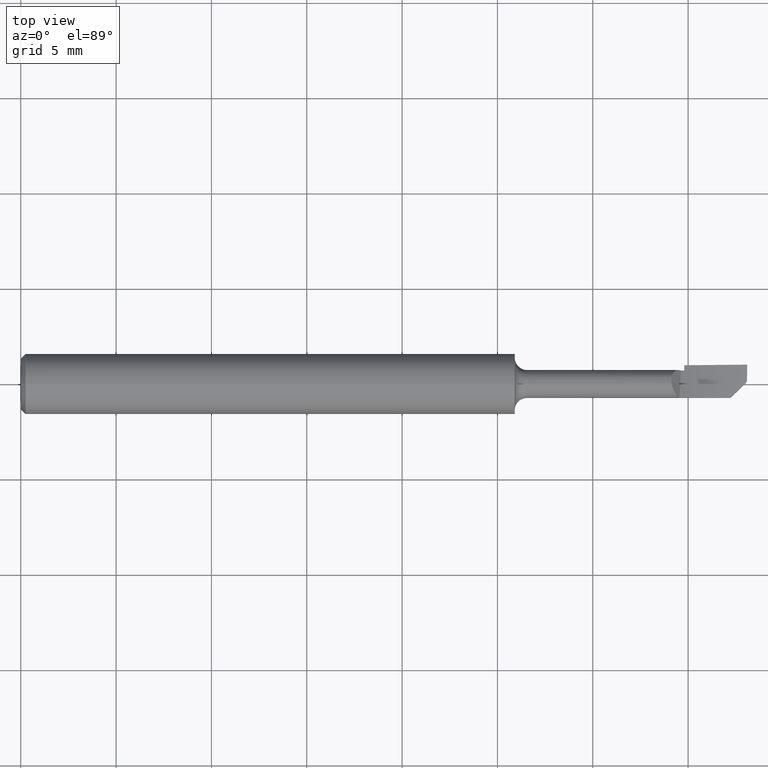
[diagram: clean part render]
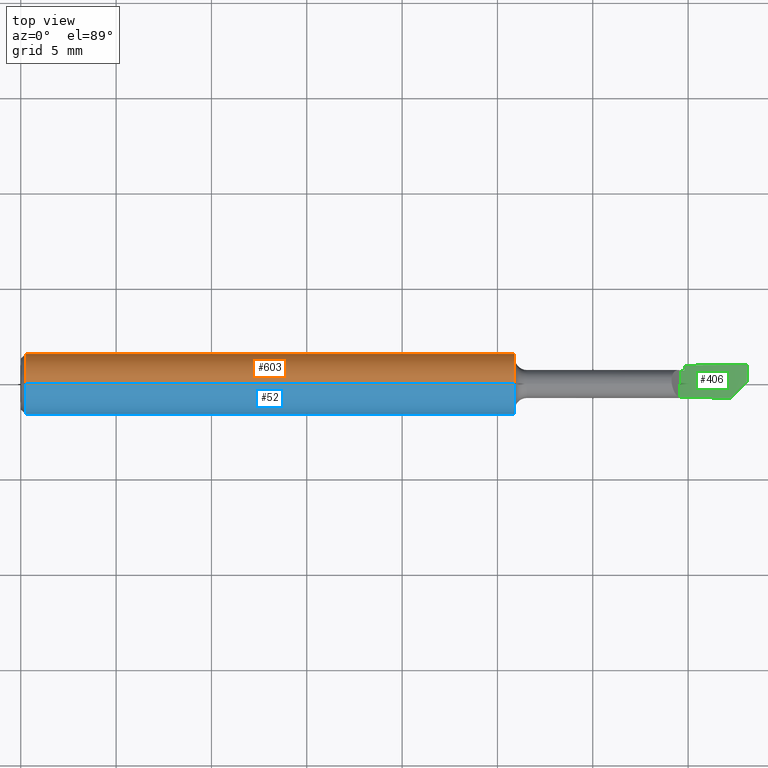
[diagram: same view with three faces highlighted in distinct colors, each labeled with its STEP entity id]
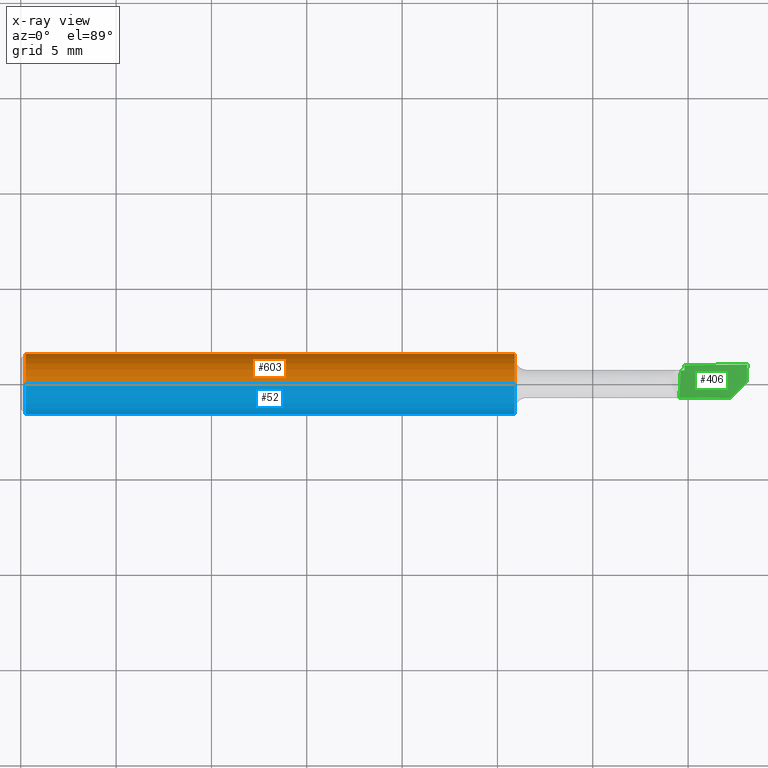
[diagram: x-ray of the same camera — body ghosted, the three highlighted faces saturated]
A machine part, top view with three faces highlighted in distinct colors.
The next image is the same camera in x-ray (body ghosted, the three faces saturated) — at least one of them is partly hidden behind the body in this view.
Their STEP definitions:

[orange] entity #603 — the highlighted cylindrical surface (edge-blend (fillet) strip) has radius 1.5837 mm, axis along (-1, -0, -0).
#8 = DIRECTION ( 'NONE',  ( -1.000000000000000000, -0.000000000000000000, -0.000000000000000000 ) ) ;
#11 = VERTEX_POINT ( 'NONE', #242 ) ;
#25 = CYLINDRICAL_SURFACE ( 'NONE', #326, 0.06234999999999997489 ) ;
#34 = VERTEX_POINT ( 'NONE', #731 ) ;
#89 = DIRECTION ( 'NONE',  ( -1.000000000000000000, -0.000000000000000000, -0.000000000000000000 ) ) ;
#92 = LINE ( 'NONE', #693, #513 ) ;
#93 = VERTEX_POINT ( 'NONE', #533 ) ;
#101 = CIRCLE ( 'NONE', #336, 0.06234999999999997489 ) ;
#127 = EDGE_CURVE ( 'NONE', #445, #93, #682, .T. ) ;
#143 = CARTESIAN_POINT ( 'NONE',  ( 1.020000000000000240, 0.000000000000000000, 0.000000000000000000 ) ) ;
#145 = ORIENTED_EDGE ( 'NONE', *, *, #775, .F. ) ;
#177 = AXIS2_PLACEMENT_3D ( 'NONE', #501, #8, #621 ) ;
#205 = CARTESIAN_POINT ( 'NONE',  ( 0.000000000000000000, 7.635672792683743590E-18, -0.06234999999999997489 ) ) ;
#242 = CARTESIAN_POINT ( 'NONE',  ( 1.020000000000000240, 0.000000000000000000, 0.06234999999999997489 ) ) ;
#257 = DIRECTION ( 'NONE',  ( 0.000000000000000000, 0.000000000000000000, -1.000000000000000000 ) ) ;
#266 = DIRECTION ( 'NONE',  ( -1.000000000000000000, -0.000000000000000000, -0.000000000000000000 ) ) ;
#316 = DIRECTION ( 'NONE',  ( -1.000000000000000000, -0.000000000000000000, -0.000000000000000000 ) ) ;
#321 = FACE_OUTER_BOUND ( 'NONE', #619, .T. ) ;
#326 = AXIS2_PLACEMENT_3D ( 'NONE', #690, #266, #687 ) ;
#336 = AXIS2_PLACEMENT_3D ( 'NONE', #143, #746, #257 ) ;
#389 = ORIENTED_EDGE ( 'NONE', *, *, #691, .T. ) ;
#408 = VECTOR ( 'NONE', #89, 39.37007874015748143 ) ;
#445 = VERTEX_POINT ( 'NONE', #662 ) ;
#501 = CARTESIAN_POINT ( 'NONE',  ( 0.01000000000000000021, 0.000000000000000000, 0.000000000000000000 ) ) ;
#513 = VECTOR ( 'NONE', #316, 39.37007874015748143 ) ;
#514 = LINE ( 'NONE', #205, #408 ) ;
#533 = CARTESIAN_POINT ( 'NONE',  ( 0.01000000000000000021, 7.635672792683748212E-18, -0.06235000000000000264 ) ) ;
#571 = EDGE_CURVE ( 'NONE', #34, #11, #101, .T. ) ;
#603 = ADVANCED_FACE ( 'NONE', ( #321 ), #25, .T. ) ;
#619 = EDGE_LOOP ( 'NONE', ( #776, #389, #709, #145 ) ) ;
#621 = DIRECTION ( 'NONE',  ( 0.000000000000000000, 0.000000000000000000, 1.000000000000000000 ) ) ;
#662 = CARTESIAN_POINT ( 'NONE',  ( 0.01000000000000000021, 0.000000000000000000, 0.06235000000000000264 ) ) ;
#682 = CIRCLE ( 'NONE', #177, 0.06235000000000000264 ) ;
#687 = DIRECTION ( 'NONE',  ( 0.000000000000000000, 0.000000000000000000, 1.000000000000000000 ) ) ;
#690 = CARTESIAN_POINT ( 'NONE',  ( 0.000000000000000000, 0.000000000000000000, 0.000000000000000000 ) ) ;
#691 = EDGE_CURVE ( 'NONE', #34, #93, #514, .T. ) ;
#693 = CARTESIAN_POINT ( 'NONE',  ( 0.000000000000000000, 0.000000000000000000, 0.06234999999999997489 ) ) ;
#709 = ORIENTED_EDGE ( 'NONE', *, *, #127, .F. ) ;
#731 = CARTESIAN_POINT ( 'NONE',  ( 1.020000000000000240, 7.635672792683743590E-18, -0.06234999999999997489 ) ) ;
#746 = DIRECTION ( 'NONE',  ( 1.000000000000000000, 0.000000000000000000, 0.000000000000000000 ) ) ;
#775 = EDGE_CURVE ( 'NONE', #11, #445, #92, .T. ) ;
#776 = ORIENTED_EDGE ( 'NONE', *, *, #571, .F. ) ;

[blue] entity #52 — the highlighted cylindrical surface (edge-blend (fillet) strip) has radius 1.5837 mm, axis along (-1, -0, -0).
#11 = VERTEX_POINT ( 'NONE', #242 ) ;
#34 = VERTEX_POINT ( 'NONE', #731 ) ;
#52 = ADVANCED_FACE ( 'NONE', ( #57 ), #419, .T. ) ;
#57 = FACE_OUTER_BOUND ( 'NONE', #697, .T. ) ;
#60 = AXIS2_PLACEMENT_3D ( 'NONE', #595, #474, #541 ) ;
#89 = DIRECTION ( 'NONE',  ( -1.000000000000000000, -0.000000000000000000, -0.000000000000000000 ) ) ;
#92 = LINE ( 'NONE', #693, #513 ) ;
#93 = VERTEX_POINT ( 'NONE', #533 ) ;
#205 = CARTESIAN_POINT ( 'NONE',  ( 0.000000000000000000, 7.635672792683743590E-18, -0.06234999999999997489 ) ) ;
#242 = CARTESIAN_POINT ( 'NONE',  ( 1.020000000000000240, 0.000000000000000000, 0.06234999999999997489 ) ) ;
#278 = CARTESIAN_POINT ( 'NONE',  ( 1.020000000000000240, 0.000000000000000000, 0.000000000000000000 ) ) ;
#283 = AXIS2_PLACEMENT_3D ( 'NONE', #278, #783, #470 ) ;
#316 = DIRECTION ( 'NONE',  ( -1.000000000000000000, -0.000000000000000000, -0.000000000000000000 ) ) ;
#325 = DIRECTION ( 'NONE',  ( 0.000000000000000000, 0.000000000000000000, 1.000000000000000000 ) ) ;
#343 = ORIENTED_EDGE ( 'NONE', *, *, #775, .T. ) ;
#373 = EDGE_CURVE ( 'NONE', #11, #34, #644, .T. ) ;
#385 = CIRCLE ( 'NONE', #435, 0.06235000000000000264 ) ;
#392 = ORIENTED_EDGE ( 'NONE', *, *, #373, .F. ) ;
#408 = VECTOR ( 'NONE', #89, 39.37007874015748143 ) ;
#419 = CYLINDRICAL_SURFACE ( 'NONE', #60, 0.06234999999999997489 ) ;
#435 = AXIS2_PLACEMENT_3D ( 'NONE', #620, #560, #325 ) ;
#445 = VERTEX_POINT ( 'NONE', #662 ) ;
#470 = DIRECTION ( 'NONE',  ( 0.000000000000000000, 0.000000000000000000, -1.000000000000000000 ) ) ;
#474 = DIRECTION ( 'NONE',  ( -1.000000000000000000, -0.000000000000000000, -0.000000000000000000 ) ) ;
#512 = ORIENTED_EDGE ( 'NONE', *, *, #691, .F. ) ;
#513 = VECTOR ( 'NONE', #316, 39.37007874015748143 ) ;
#514 = LINE ( 'NONE', #205, #408 ) ;
#533 = CARTESIAN_POINT ( 'NONE',  ( 0.01000000000000000021, 7.635672792683748212E-18, -0.06235000000000000264 ) ) ;
#541 = DIRECTION ( 'NONE',  ( 0.000000000000000000, 0.000000000000000000, 1.000000000000000000 ) ) ;
#545 = EDGE_CURVE ( 'NONE', #93, #445, #385, .T. ) ;
#560 = DIRECTION ( 'NONE',  ( -1.000000000000000000, -0.000000000000000000, -0.000000000000000000 ) ) ;
#595 = CARTESIAN_POINT ( 'NONE',  ( 0.000000000000000000, 0.000000000000000000, 0.000000000000000000 ) ) ;
#620 = CARTESIAN_POINT ( 'NONE',  ( 0.01000000000000000021, 0.000000000000000000, 0.000000000000000000 ) ) ;
#631 = ORIENTED_EDGE ( 'NONE', *, *, #545, .F. ) ;
#644 = CIRCLE ( 'NONE', #283, 0.06234999999999997489 ) ;
#662 = CARTESIAN_POINT ( 'NONE',  ( 0.01000000000000000021, 0.000000000000000000, 0.06235000000000000264 ) ) ;
#691 = EDGE_CURVE ( 'NONE', #34, #93, #514, .T. ) ;
#693 = CARTESIAN_POINT ( 'NONE',  ( 0.000000000000000000, 0.000000000000000000, 0.06234999999999997489 ) ) ;
#697 = EDGE_LOOP ( 'NONE', ( #512, #392, #343, #631 ) ) ;
#731 = CARTESIAN_POINT ( 'NONE',  ( 1.020000000000000240, 7.635672792683743590E-18, -0.06234999999999997489 ) ) ;
#775 = EDGE_CURVE ( 'NONE', #11, #445, #92, .T. ) ;
#783 = DIRECTION ( 'NONE',  ( 1.000000000000000000, 0.000000000000000000, 0.000000000000000000 ) ) ;

[green] entity #406 — the highlighted face is a freeform B-spline surface patch.
#7 = CARTESIAN_POINT ( 'NONE',  ( 1.175000000000000711, 0.1015806386774461834, -0.05416030337439214221 ) ) ;
#12 = CARTESIAN_POINT ( 'NONE',  ( 1.500000000000000000, -0.03809952085550567802, -0.005938488488639542470 ) ) ;
#13 = VERTEX_POINT ( 'NONE', #232 ) ;
#15 = EDGE_CURVE ( 'NONE', #383, #207, #676, .T. ) ;
#22 = CARTESIAN_POINT ( 'NONE',  ( 1.370000000000000995, 0.02801306668690308962, -0.007501206222680386997 ) ) ;
#29 = CARTESIAN_POINT ( 'NONE',  ( 1.370000000000002105, 0.03163472708412574941, -0.008150383591435668429 ) ) ;
#31 = CARTESIAN_POINT ( 'NONE',  ( 1.500000000000000222, 0.04000000000000000083, 0.000000000000000000 ) ) ;
#74 = VERTEX_POINT ( 'NONE', #361 ) ;
#75 = CARTESIAN_POINT ( 'NONE',  ( 1.370000000000000773, 0.03889705483791568857, -0.009328404200943489488 ) ) ;
#83 =( BOUNDED_SURFACE ( )  B_SPLINE_SURFACE ( 3, 2, ( 
 ( #364, #360, #135, #121, #602 ),
 ( #12, #739, #305, #194, #668 ),
 ( #357, #181, #476, #189, #727 ),
 ( #658, #612, #423, #7, #118 ) ),
 .UNSPECIFIED., .F., .F., .F. ) 
 B_SPLINE_SURFACE_WITH_KNOTS ( ( 4, 4 ),
 ( 3, 2, 3 ),
 ( 0.000000000000000000, 1.000000000000000000 ),
 ( 0.000000000000000000, 0.5000000000000000000, 1.000000000000000000 ),
 .UNSPECIFIED. ) 
 GEOMETRIC_REPRESENTATION_ITEM ( )  RATIONAL_B_SPLINE_SURFACE ( (
 ( 1.000000000000000000, 0.9807852804032304306, 1.000000000000000000, 0.9807852804032304306, 1.000000000000000000),
 ( 0.9829519941216796619, 0.9640648471775461470, 0.9829519941216796619, 0.9640648471775461470, 0.9829519941216796619),
 ( 0.9829519941216796619, 0.9640648471775461470, 0.9829519941216796619, 0.9640648471775461470, 0.9829519941216796619),
 ( 1.000000000000000000, 0.9807852804032304306, 1.000000000000000000, 0.9807852804032304306, 1.000000000000000000) ) ) 
 REPRESENTATION_ITEM ( '' )  SURFACE ( )  );
#95 = CARTESIAN_POINT ( 'NONE',  ( 1.366483144912173930, 0.02796552330872572115, -0.007678755777169924551 ) ) ;
#97 = CARTESIAN_POINT ( 'NONE',  ( 1.500000000000000222, 0.04000000000000000083, 0.000000000000000000 ) ) ;
#118 = CARTESIAN_POINT ( 'NONE',  ( 1.066666666666667762, 0.08735133042885809274, -0.07153556330375904215 ) ) ;
#119 = CARTESIAN_POINT ( 'NONE',  ( 1.359812946886974183, -0.02825286555653415410, 0.006540304873964866011 ) ) ;
#121 = CARTESIAN_POINT ( 'NONE',  ( 1.175000000000000711, -0.08891082323312583802, 0.07312202218026980782 ) ) ;
#135 = CARTESIAN_POINT ( 'NONE',  ( 1.283333333333334103, -0.09951814973318083568, 0.05332663141959952113 ) ) ;
#140 =( BOUNDED_CURVE ( )  B_SPLINE_CURVE ( 2, ( #492, #95, #22 ),
 .UNSPECIFIED., .F., .T. ) 
 B_SPLINE_CURVE_WITH_KNOTS ( ( 3, 3 ),
 ( 0.6843654409706481090, 0.7004615063419189491 ),
 .UNSPECIFIED. ) 
 CURVE ( )  GEOMETRIC_REPRESENTATION_ITEM ( )  RATIONAL_B_SPLINE_CURVE ( ( 0.9792068466601346888, 0.9790463917204700328, 0.9789252863740102173 ) ) 
 REPRESENTATION_ITEM ( '' )  );
#154 = CARTESIAN_POINT ( 'NONE',  ( 1.499500392139578864, 0.005010390271118192115, -0.001582045523762461159 ) ) ;
#155 = CARTESIAN_POINT ( 'NONE',  ( 1.370000000000001439, 0.03526287220827594576, -0.008759464147967733344 ) ) ;
#164 = CARTESIAN_POINT ( 'NONE',  ( 1.465509546751889935, -0.02898045511657074830, 0.001064528645190079446 ) ) ;
#166 = CARTESIAN_POINT ( 'NONE',  ( 1.465509546751889935, -0.02898045511657074830, 0.001064528645190079446 ) ) ;
#181 = CARTESIAN_POINT ( 'NONE',  ( 1.391666666666667052, 0.03691828205157376280, -0.01351695437803885139 ) ) ;
#189 = CARTESIAN_POINT ( 'NONE',  ( 1.175000000000000933, 0.02893533066641755871, -0.02661605238427766640 ) ) ;
#194 = CARTESIAN_POINT ( 'NONE',  ( 1.175000000000000933, -0.03566309769012571823, 0.01654723748672481259 ) ) ;
#207 = VERTEX_POINT ( 'NONE', #216 ) ;
#209 = EDGE_LOOP ( 'NONE', ( #411, #711, #443, #572, #324, #436, #695 ) ) ;
#210 = CARTESIAN_POINT ( 'NONE',  ( 1.370000000000000773, 0.03889705483791568857, -0.009328404200943489488 ) ) ;
#216 = CARTESIAN_POINT ( 'NONE',  ( 1.359812946886974183, -0.02825286555653415410, 0.006540304873964866011 ) ) ;
#232 = CARTESIAN_POINT ( 'NONE',  ( 1.500000000000000222, 0.04000000000000000083, 0.000000000000000000 ) ) ;
#234 = CARTESIAN_POINT ( 'NONE',  ( 1.476798262906834136, -0.01769173896162653387, -0.0009050575358411995551 ) ) ;
#261 = EDGE_CURVE ( 'NONE', #453, #510, #424, .T. ) ;
#275 = CARTESIAN_POINT ( 'NONE',  ( 1.499500392139578864, 0.005010390271118192115, -0.001582045523762461159 ) ) ;
#286 = CARTESIAN_POINT ( 'NONE',  ( 1.488128444038904874, -0.006361557829556374437, -0.001789906198651234747 ) ) ;
#295 = EDGE_CURVE ( 'NONE', #455, #207, #757, .T. ) ;
#299 = CARTESIAN_POINT ( 'NONE',  ( 1.362968313061897030, 0.02791573318773603665, -0.007855688422431681209 ) ) ;
#305 = CARTESIAN_POINT ( 'NONE',  ( 1.283333333333333881, -0.03747192867478175982, 0.009093607443742279112 ) ) ;
#324 = ORIENTED_EDGE ( 'NONE', *, *, #15, .T. ) ;
#341 = CARTESIAN_POINT ( 'NONE',  ( 1.362968313061897030, 0.02791573318773603665, -0.007855688422431681209 ) ) ;
#352 = EDGE_CURVE ( 'NONE', #74, #455, #656, .T. ) ;
#357 = CARTESIAN_POINT ( 'NONE',  ( 1.500000000000000000, 0.03809952085550589312, -0.005938488488639519919 ) ) ;
#360 = CARTESIAN_POINT ( 'NONE',  ( 1.391666666666667052, -0.1101254762332358333, 0.03353124065892923444 ) ) ;
#361 = CARTESIAN_POINT ( 'NONE',  ( 1.499500392139578864, 0.005010390271118192115, -0.001582045523762461159 ) ) ;
#364 = CARTESIAN_POINT ( 'NONE',  ( 1.500000000000000222, -0.1123499999999997279, 0.01118343618382471212 ) ) ;
#383 = VERTEX_POINT ( 'NONE', #341 ) ;
#406 = ADVANCED_FACE ( 'NONE', ( #675 ), #83, .T. ) ;
#411 = ORIENTED_EDGE ( 'NONE', *, *, #637, .F. ) ;
#413 = CARTESIAN_POINT ( 'NONE',  ( 1.360876674601555925, -0.009870169379835513554, 0.0005586078882698760836 ) ) ;
#423 = CARTESIAN_POINT ( 'NONE',  ( 1.283333333333334103, 0.1080775812221050070, -0.03266233583283596753 ) ) ;
#424 =( BOUNDED_CURVE ( )  B_SPLINE_CURVE ( 3, ( #708, #29, #155, #638 ),
 .UNSPECIFIED., .F., .T. ) 
 B_SPLINE_CURVE_WITH_KNOTS ( ( 4, 4 ),
 ( 0.001794523136625613725, 0.002074175847000391416 ),
 .UNSPECIFIED. ) 
 CURVE ( )  GEOMETRIC_REPRESENTATION_ITEM ( )  RATIONAL_B_SPLINE_CURVE ( ( 0.9789252863740107724, 0.9791343415412776530, 0.9793832048216128960, 0.9796718762150162796 ) ) 
 REPRESENTATION_ITEM ( '' )  );
#436 = ORIENTED_EDGE ( 'NONE', *, *, #295, .F. ) ;
#443 = ORIENTED_EDGE ( 'NONE', *, *, #261, .F. ) ;
#453 = VERTEX_POINT ( 'NONE', #598 ) ;
#455 = VERTEX_POINT ( 'NONE', #496 ) ;
#476 = CARTESIAN_POINT ( 'NONE',  ( 1.283333333333333881, 0.03292680635899566249, -0.02006650338115825369 ) ) ;
#482 = CARTESIAN_POINT ( 'NONE',  ( 1.361922367837337555, 0.008922197056432275286, -0.004257548188750535055 ) ) ;
#492 = CARTESIAN_POINT ( 'NONE',  ( 1.362968313061897030, 0.02791573318773603665, -0.007855688422431681209 ) ) ;
#496 = CARTESIAN_POINT ( 'NONE',  ( 1.465509546751889935, -0.02898045511657074830, 0.001064528645190079446 ) ) ;
#505 = CARTESIAN_POINT ( 'NONE',  ( 1.435605780411735255, 0.04000000000000000083, -0.004729405537427990892 ) ) ;
#510 = VERTEX_POINT ( 'NONE', #75 ) ;
#531 =( BOUNDED_CURVE ( )  B_SPLINE_CURVE ( 2, ( #210, #505, #97 ),
 .UNSPECIFIED., .F., .T. ) 
 B_SPLINE_CURVE_WITH_KNOTS ( ( 3, 3 ),
 ( 0.7004615063423480503, 1.000000000000000000 ),
 .UNSPECIFIED. ) 
 CURVE ( )  GEOMETRIC_REPRESENTATION_ITEM ( )  RATIONAL_B_SPLINE_CURVE ( ( 0.9796718762150098403, 0.9774164567476129051, 0.9887986128290200405 ) ) 
 REPRESENTATION_ITEM ( '' )  );
#572 = ORIENTED_EDGE ( 'NONE', *, *, #788, .F. ) ;
#583 = B_SPLINE_CURVE_WITH_KNOTS ( 'NONE', 3,
 ( #31, #753, #628, #154 ),
 .UNSPECIFIED., .F., .F.,
 ( 4, 4 ),
 ( 7.653124804320827492E-23, 0.0008891916248711743400 ),
 .UNSPECIFIED. ) ;
#598 = CARTESIAN_POINT ( 'NONE',  ( 1.370000000000000995, 0.02801306668690308962, -0.007501206222680386997 ) ) ;
#602 = CARTESIAN_POINT ( 'NONE',  ( 1.066666666666667762, -0.07153556330375895889, 0.08735133042885787069 ) ) ;
#608 = CARTESIAN_POINT ( 'NONE',  ( 1.359812946886974183, -0.02825286555653415410, 0.006540304873964866011 ) ) ;
#612 = CARTESIAN_POINT ( 'NONE',  ( 1.391666666666667052, 0.1145745237667638583, -0.01116436829127978245 ) ) ;
#628 = CARTESIAN_POINT ( 'NONE',  ( 1.499615395459379164, 0.01667852160723410151, -0.001474730908015845074 ) ) ;
#637 = EDGE_CURVE ( 'NONE', #13, #74, #583, .T. ) ;
#638 = CARTESIAN_POINT ( 'NONE',  ( 1.370000000000000773, 0.03889705483791568857, -0.009328404200943489488 ) ) ;
#645 = CARTESIAN_POINT ( 'NONE',  ( 1.412853423040296486, -0.02887860673711900583, 0.003837222710524207554 ) ) ;
#656 = B_SPLINE_CURVE_WITH_KNOTS ( 'NONE', 3,
 ( #275, #286, #234, #164 ),
 .UNSPECIFIED., .F., .F.,
 ( 4, 4 ),
 ( 1.790677347254724907E-05, 0.001240741280585874479 ),
 .UNSPECIFIED. ) ;
#658 = CARTESIAN_POINT ( 'NONE',  ( 1.500000000000000222, 0.1123499999999999360, 0.01118343618382478151 ) ) ;
#659 = EDGE_CURVE ( 'NONE', #510, #13, #531, .T. ) ;
#668 = CARTESIAN_POINT ( 'NONE',  ( 1.066666666666667762, -0.03113957503720163333, 0.02274128407657108678 ) ) ;
#675 = FACE_OUTER_BOUND ( 'NONE', #209, .T. ) ;
#676 = B_SPLINE_CURVE_WITH_KNOTS ( 'NONE', 3,
 ( #299, #482, #413, #119 ),
 .UNSPECIFIED., .F., .F.,
 ( 4, 4 ),
 ( 0.000000000000000000, 1.000000000000000000 ),
 .UNSPECIFIED. ) ;
#695 = ORIENTED_EDGE ( 'NONE', *, *, #352, .F. ) ;
#708 = CARTESIAN_POINT ( 'NONE',  ( 1.370000000000000995, 0.02801306668690308962, -0.007501206222680386997 ) ) ;
#711 = ORIENTED_EDGE ( 'NONE', *, *, #659, .F. ) ;
#727 = CARTESIAN_POINT ( 'NONE',  ( 1.066666666666667762, 0.02274128407657125331, -0.03113957503720176517 ) ) ;
#739 = CARTESIAN_POINT ( 'NONE',  ( 1.391666666666667052, -0.03928075965943782222, 0.001639977400759747581 ) ) ;
#753 = CARTESIAN_POINT ( 'NONE',  ( 1.499781400249774910, 0.02834177564558618828, -0.0009517118201217998402 ) ) ;
#757 =( BOUNDED_CURVE ( )  B_SPLINE_CURVE ( 2, ( #166, #645, #608 ),
 .UNSPECIFIED., .F., .T. ) 
 B_SPLINE_CURVE_WITH_KNOTS ( ( 3, 3 ),
 ( 0.08047774069797784813, 0.3228623492505324766 ),
 .UNSPECIFIED. ) 
 CURVE ( )  GEOMETRIC_REPRESENTATION_ITEM ( )  RATIONAL_B_SPLINE_CURVE ( ( 0.9829172617772614640, 0.9766765724518794434, 0.9793588826515089441 ) ) 
 REPRESENTATION_ITEM ( '' )  );
#788 = EDGE_CURVE ( 'NONE', #383, #453, #140, .T. ) ;